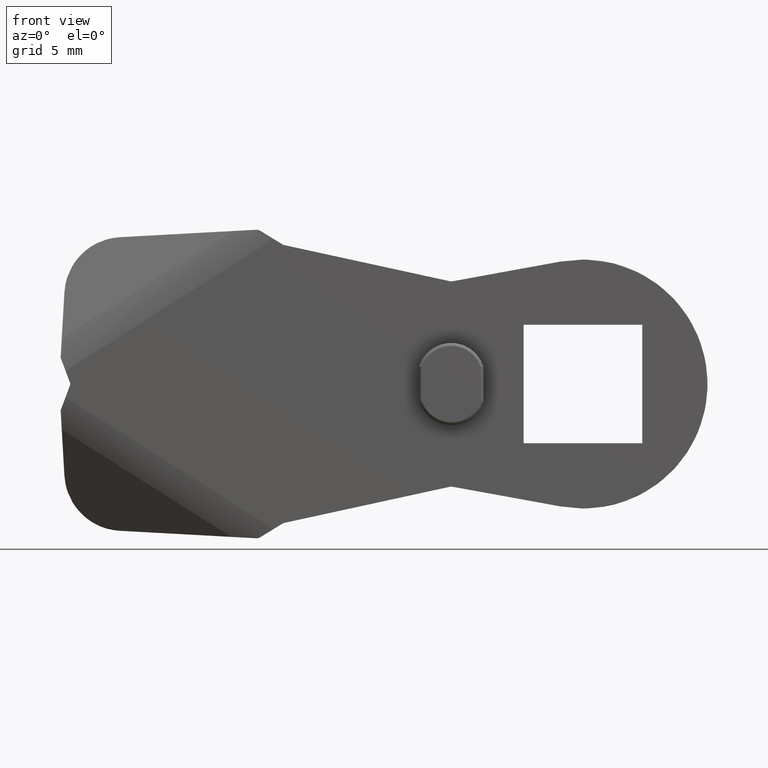
[diagram: clean part render]
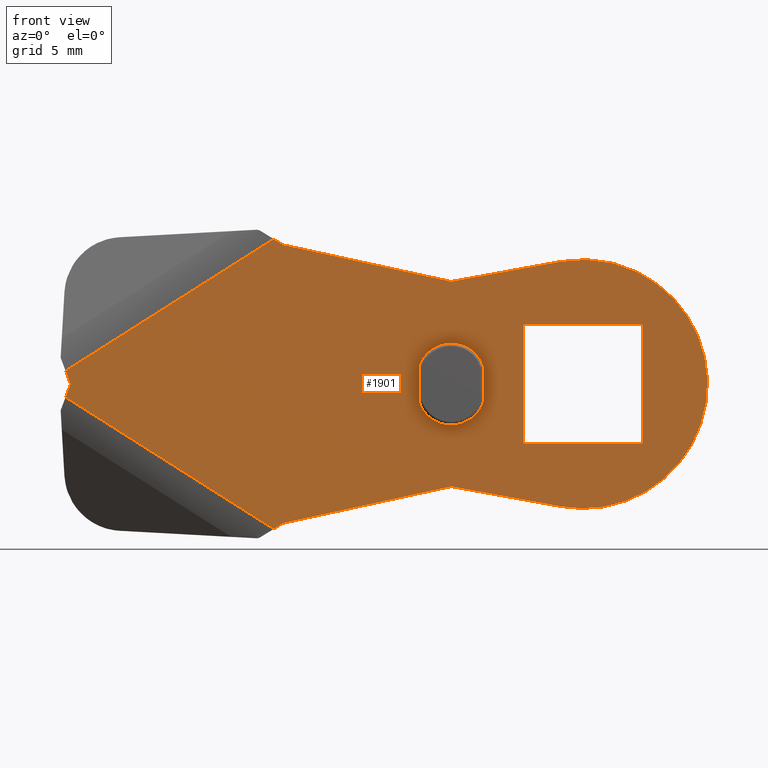
[diagram: same view with one face highlighted and labeled with its STEP entity id]
A machine part, front view. The second image highlights one B-rep face of the part: STEP entity #1901.
In plain terms, the highlighted face is a freeform B-spline surface patch.
Its self-contained STEP definition (entity closure, byte-faithful):
#253=CARTESIAN_POINT('',(-21.120222960138801,-4.000000189989805,-9.901939888109700));
#254=VERTEX_POINT('',#253);
#268=CARTESIAN_POINT('',(-35.335924522681047,-4.000000189989805,-0.898662231830771));
#269=VERTEX_POINT('',#268);
#270=CARTESIAN_POINT('',(-35.335924522681047,-4.000000189989805,-0.898662231830771));
#271=CARTESIAN_POINT('',(-21.120222960138801,-4.000000189989805,-9.901939888109700));
#272=QUASI_UNIFORM_CURVE('',1,(#270,#271),.UNSPECIFIED.,.F.,.U.);
#273=EDGE_CURVE('',#269,#254,#272,.T.);
#327=CARTESIAN_POINT('',(-21.120222960138801,-4.000000189989805,9.901939888109700));
#328=VERTEX_POINT('',#327);
#380=CARTESIAN_POINT('',(-35.335924522680997,-4.000000189989805,0.898662231830771));
#381=VERTEX_POINT('',#380);
#395=CARTESIAN_POINT('',(-21.120222960138801,-4.000000189989805,9.901939888109700));
#396=CARTESIAN_POINT('',(-35.335924522680997,-4.000000189989805,0.898662231830771));
#397=QUASI_UNIFORM_CURVE('',1,(#395,#396),.UNSPECIFIED.,.F.,.U.);
#398=EDGE_CURVE('',#328,#381,#397,.T.);
#469=CARTESIAN_POINT('',(-35.000001662411087,-4.000000189989805,1.136868E-013));
#470=VERTEX_POINT('',#469);
#471=CARTESIAN_POINT('',(-35.335924522680997,-4.000000189989805,0.898662231830771));
#472=CARTESIAN_POINT('',(-35.000001662411087,-4.000000189989805,1.136868E-013));
#473=QUASI_UNIFORM_CURVE('',1,(#471,#472),.UNSPECIFIED.,.F.,.U.);
#474=EDGE_CURVE('',#381,#470,#473,.T.);
#519=CARTESIAN_POINT('',(-35.000001662411087,-4.000000189989805,1.136868E-013));
#520=CARTESIAN_POINT('',(-35.335924522681047,-4.000000189989805,-0.898662231830771));
#521=QUASI_UNIFORM_CURVE('',1,(#519,#520),.UNSPECIFIED.,.F.,.U.);
#522=EDGE_CURVE('',#470,#269,#521,.T.);
#635=CARTESIAN_POINT('',(-20.465839481394600,-4.000000189989805,-9.500000000000000));
#636=VERTEX_POINT('',#635);
#642=CARTESIAN_POINT('',(-20.465839481394600,-4.000000189989805,-9.500000000000000));
#643=CARTESIAN_POINT('',(-21.120222960138801,-4.000000189989805,-9.901939888109700));
#644=QUASI_UNIFORM_CURVE('',1,(#642,#643),.UNSPECIFIED.,.F.,.U.);
#645=EDGE_CURVE('',#636,#254,#644,.T.);
#664=CARTESIAN_POINT('',(-20.465839481394600,-4.000000189989805,9.500000000000000));
#665=VERTEX_POINT('',#664);
#666=CARTESIAN_POINT('',(-21.120222960138801,-4.000000189989805,9.901939888109700));
#667=CARTESIAN_POINT('',(-20.465839481394600,-4.000000189989805,9.500000000000000));
#668=QUASI_UNIFORM_CURVE('',1,(#666,#667),.UNSPECIFIED.,.F.,.U.);
#669=EDGE_CURVE('',#328,#665,#668,.T.);
#1402=CARTESIAN_POINT('',(-6.800000322982700,-4.000000189989805,-1.199079760973446));
#1403=VERTEX_POINT('',#1402);
#1410=CARTESIAN_POINT('',(-11.200000531971460,-4.000000189989805,-1.199079760973478));
#1411=VERTEX_POINT('',#1410);
#1417=CARTESIAN_POINT('',(-11.200000531971471,-4.000000189989805,-1.199079760973483));
#1418=CARTESIAN_POINT('',(-10.682488187863763,-4.000000189989805,-2.800000132993069));
#1419=CARTESIAN_POINT('',(-9.000000427477021,-4.000000189989805,-2.800000132993069));
#1420=CARTESIAN_POINT('',(-7.317512667090284,-4.000000189989805,-2.800000132993069));
#1421=CARTESIAN_POINT('',(-6.800000322982700,-4.000000189989805,-1.199079760973446));
#1429=(BOUNDED_CURVE()B_SPLINE_CURVE(2,(#1417,#1418,#1419,#1420,#1421),.UNSPECIFIED.,.F.,.U.)B_SPLINE_CURVE_WITH_KNOTS((3,2,3),(0.0,0.500000000000000,1.0),.UNSPECIFIED.)CURVE()GEOMETRIC_REPRESENTATION_ITEM()RATIONAL_B_SPLINE_CURVE((1.0,0.808575161402868,1.0,0.808575161402868,1.0))REPRESENTATION_ITEM(''));
#1430=EDGE_CURVE('',#1411,#1403,#1429,.T.);
#1440=CARTESIAN_POINT('',(-6.800000322982561,-4.000000189989805,1.199079760973514));
#1441=VERTEX_POINT('',#1440);
#1449=CARTESIAN_POINT('',(-6.800000322982561,-4.000000189989805,1.199079760973514));
#1450=CARTESIAN_POINT('',(-6.800000322982700,-4.000000189989805,-1.199079760973446));
#1451=QUASI_UNIFORM_CURVE('',1,(#1449,#1450),.UNSPECIFIED.,.F.,.U.);
#1452=EDGE_CURVE('',#1441,#1403,#1451,.T.);
#1475=CARTESIAN_POINT('',(-11.200000531971479,-4.000000189989805,1.199079760973516));
#1476=VERTEX_POINT('',#1475);
#1484=CARTESIAN_POINT('',(-6.800000322982560,-4.000000189989805,1.199079760973514));
#1485=CARTESIAN_POINT('',(-7.317512667090298,-4.000000189989804,2.800000132993075));
#1486=CARTESIAN_POINT('',(-9.000000427477021,-4.000000189989805,2.800000132993075));
#1487=CARTESIAN_POINT('',(-10.682488187863745,-4.000000189989804,2.800000132993075));
#1488=CARTESIAN_POINT('',(-11.200000531971479,-4.000000189989805,1.199079760973516));
#1496=(BOUNDED_CURVE()B_SPLINE_CURVE(2,(#1484,#1485,#1486,#1487,#1488),.UNSPECIFIED.,.F.,.U.)B_SPLINE_CURVE_WITH_KNOTS((3,2,3),(0.0,0.500000000000000,1.0),.UNSPECIFIED.)CURVE()GEOMETRIC_REPRESENTATION_ITEM()RATIONAL_B_SPLINE_CURVE((1.0,0.808575161402874,1.0,0.808575161402874,1.0))REPRESENTATION_ITEM(''));
#1497=EDGE_CURVE('',#1441,#1476,#1496,.T.);
#1510=CARTESIAN_POINT('',(-11.200000531971460,-4.000000189989805,-1.199079760973478));
#1511=CARTESIAN_POINT('',(-11.200000531971479,-4.000000189989805,1.199079760973516));
#1512=QUASI_UNIFORM_CURVE('',1,(#1510,#1511),.UNSPECIFIED.,.F.,.U.);
#1513=EDGE_CURVE('',#1411,#1476,#1512,.T.);
#1523=CARTESIAN_POINT('',(4.050000192364690,-4.000000189989805,-4.050000192364680));
#1524=VERTEX_POINT('',#1523);
#1539=CARTESIAN_POINT('',(-4.050000192364704,-4.000000189989805,-4.050000192364680));
#1540=VERTEX_POINT('',#1539);
#1546=CARTESIAN_POINT('',(4.050000192364690,-4.000000189989805,-4.050000192364680));
#1547=CARTESIAN_POINT('',(-4.050000192364704,-4.000000189989805,-4.050000192364680));
#1548=QUASI_UNIFORM_CURVE('',1,(#1546,#1547),.UNSPECIFIED.,.F.,.U.);
#1549=EDGE_CURVE('',#1524,#1540,#1548,.T.);
#1567=CARTESIAN_POINT('',(-4.050000192364704,-4.000000189989805,4.050000192364690));
#1568=VERTEX_POINT('',#1567);
#1574=CARTESIAN_POINT('',(-4.050000192364704,-4.000000189989805,-4.050000192364680));
#1575=CARTESIAN_POINT('',(-4.050000192364704,-4.000000189989805,4.050000192364690));
#1576=QUASI_UNIFORM_CURVE('',1,(#1574,#1575),.UNSPECIFIED.,.F.,.U.);
#1577=EDGE_CURVE('',#1540,#1568,#1576,.T.);
#1595=CARTESIAN_POINT('',(4.050000192364690,-4.000000189989805,4.050000192364690));
#1596=VERTEX_POINT('',#1595);
#1602=CARTESIAN_POINT('',(-4.050000192364704,-4.000000189989805,4.050000192364690));
#1603=CARTESIAN_POINT('',(4.050000192364690,-4.000000189989805,4.050000192364690));
#1604=QUASI_UNIFORM_CURVE('',1,(#1602,#1603),.UNSPECIFIED.,.F.,.U.);
#1605=EDGE_CURVE('',#1568,#1596,#1604,.T.);
#1622=CARTESIAN_POINT('',(4.050000192364690,-4.000000189989805,4.050000192364690));
#1623=CARTESIAN_POINT('',(4.050000192364690,-4.000000189989805,-4.050000192364680));
#1624=QUASI_UNIFORM_CURVE('',1,(#1622,#1623),.UNSPECIFIED.,.F.,.U.);
#1625=EDGE_CURVE('',#1596,#1524,#1624,.T.);
#1643=CARTESIAN_POINT('',(-9.000000427477490,-4.000000189989805,7.000000332482500));
#1644=VERTEX_POINT('',#1643);
#1645=CARTESIAN_POINT('',(-20.465839481394600,-4.000000189989805,9.500000000000000));
#1646=CARTESIAN_POINT('',(-9.000000427477490,-4.000000189989805,7.000000332482500));
#1647=QUASI_UNIFORM_CURVE('',1,(#1645,#1646),.UNSPECIFIED.,.F.,.U.);
#1648=EDGE_CURVE('',#665,#1644,#1647,.T.);
#1663=CARTESIAN_POINT('',(-1.523762737230810,-4.000000189989805,8.362305542373401));
#1664=VERTEX_POINT('',#1663);
#1665=CARTESIAN_POINT('',(-9.000000427477490,-4.000000189989805,7.000000332482500));
#1666=CARTESIAN_POINT('',(-1.523762737230810,-4.000000189989805,8.362305542373401));
#1667=QUASI_UNIFORM_CURVE('',1,(#1665,#1666),.UNSPECIFIED.,.F.,.U.);
#1668=EDGE_CURVE('',#1644,#1664,#1667,.T.);
#1691=CARTESIAN_POINT('',(-1.523762737230895,-4.000000189989805,-8.362305542373589));
#1692=VERTEX_POINT('',#1691);
#1693=CARTESIAN_POINT('',(-9.000000427477490,-4.000000189989805,-7.000000332482520));
#1694=VERTEX_POINT('',#1693);
#1695=CARTESIAN_POINT('',(-1.523762737230895,-4.000000189989805,-8.362305542373589));
#1696=CARTESIAN_POINT('',(-9.000000427477490,-4.000000189989805,-7.000000332482520));
#1697=QUASI_UNIFORM_CURVE('',1,(#1695,#1696),.UNSPECIFIED.,.F.,.U.);
#1698=EDGE_CURVE('',#1692,#1694,#1697,.T.);
#1727=CARTESIAN_POINT('',(-9.000000427477490,-4.000000189989805,-7.000000332482520));
#1728=CARTESIAN_POINT('',(-20.465839481394600,-4.000000189989805,-9.500000000000000));
#1729=QUASI_UNIFORM_CURVE('',1,(#1727,#1728),.UNSPECIFIED.,.F.,.U.);
#1730=EDGE_CURVE('',#1694,#636,#1729,.T.);
#1778=CARTESIAN_POINT('',(-1.523762737230810,-4.000000189989805,8.362305542373399));
#1779=CARTESIAN_POINT('',(3.999032446587367,-4.000000189989805,9.368658331543482));
#1780=CARTESIAN_POINT('',(7.092747502208319,-4.000000189989805,4.684329165771725));
#1781=CARTESIAN_POINT('',(10.186462557829268,-4.000000189989805,-2.949030E-014));
#1782=CARTESIAN_POINT('',(7.092747502208290,-4.000000189989805,-4.684329165771767));
#1783=CARTESIAN_POINT('',(3.999032446587313,-4.000000189989805,-9.368658331543507));
#1784=CARTESIAN_POINT('',(-1.523762737230895,-4.000000189989805,-8.362305542373589));
#1792=(BOUNDED_CURVE()B_SPLINE_CURVE(2,(#1778,#1779,#1780,#1781,#1782,#1783,#1784),.UNSPECIFIED.,.F.,.U.)B_SPLINE_CURVE_WITH_KNOTS((3,2,2,3),(0.0,0.333333333333333,0.666666666666667,1.0),.UNSPECIFIED.)CURVE()GEOMETRIC_REPRESENTATION_ITEM()RATIONAL_B_SPLINE_CURVE((1.0,0.834440842978928,1.0,0.834440842978928,1.0,0.834440842978928,1.0))REPRESENTATION_ITEM(''));
#1793=EDGE_CURVE('',#1664,#1692,#1792,.T.);
#1871=CARTESIAN_POINT('',(-37.525530533793869,-4.000000189989805,10.891144202262060));
#1872=CARTESIAN_POINT('',(-37.525530533793869,-4.000000189989805,-10.891144202262060));
#1873=CARTESIAN_POINT('',(10.689606022917420,-4.000000189989805,10.891144202262060));
#1874=CARTESIAN_POINT('',(10.689606022917429,-4.000000189989805,-10.891144202262060));
#1875=B_SPLINE_SURFACE_WITH_KNOTS('',1,1,((#1871,#1873),(#1872,#1874)),.UNSPECIFIED.,.F.,.F.,.U.,(2,2),(2,2),(0.0,21.782288404524110),(0.0,48.215136556711293),.UNSPECIFIED.);
#1876=ORIENTED_EDGE('',*,*,#669,.F.);
#1877=ORIENTED_EDGE('',*,*,#398,.T.);
#1878=ORIENTED_EDGE('',*,*,#474,.T.);
#1879=ORIENTED_EDGE('',*,*,#522,.T.);
#1880=ORIENTED_EDGE('',*,*,#273,.T.);
#1881=ORIENTED_EDGE('',*,*,#645,.F.);
#1882=ORIENTED_EDGE('',*,*,#1730,.F.);
#1883=ORIENTED_EDGE('',*,*,#1698,.F.);
#1884=ORIENTED_EDGE('',*,*,#1793,.F.);
#1885=ORIENTED_EDGE('',*,*,#1668,.F.);
#1886=ORIENTED_EDGE('',*,*,#1648,.F.);
#1887=EDGE_LOOP('',(#1876,#1877,#1878,#1879,#1880,#1881,#1882,#1883,#1884,#1885,#1886));
#1888=FACE_OUTER_BOUND('',#1887,.T.);
#1889=ORIENTED_EDGE('',*,*,#1513,.T.);
#1890=ORIENTED_EDGE('',*,*,#1497,.F.);
#1891=ORIENTED_EDGE('',*,*,#1452,.T.);
#1892=ORIENTED_EDGE('',*,*,#1430,.F.);
#1893=EDGE_LOOP('',(#1889,#1890,#1891,#1892));
#1894=FACE_BOUND('',#1893,.T.);
#1895=ORIENTED_EDGE('',*,*,#1605,.T.);
#1896=ORIENTED_EDGE('',*,*,#1625,.T.);
#1897=ORIENTED_EDGE('',*,*,#1549,.T.);
#1898=ORIENTED_EDGE('',*,*,#1577,.T.);
#1899=EDGE_LOOP('',(#1895,#1896,#1897,#1898));
#1900=FACE_BOUND('',#1899,.T.);
#1901=ADVANCED_FACE('',(#1888,#1894,#1900),#1875,.T.);